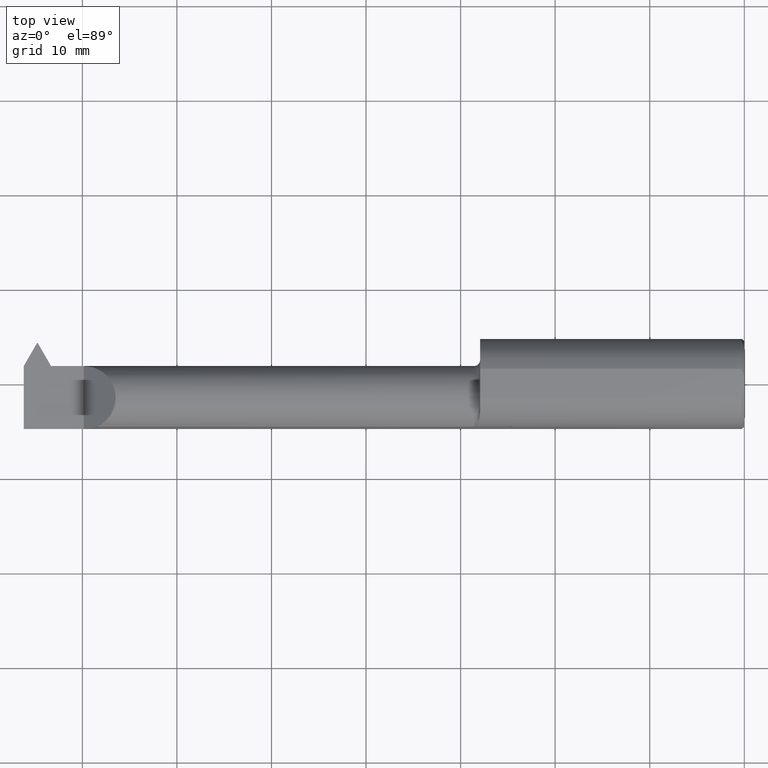
[diagram: clean part render]
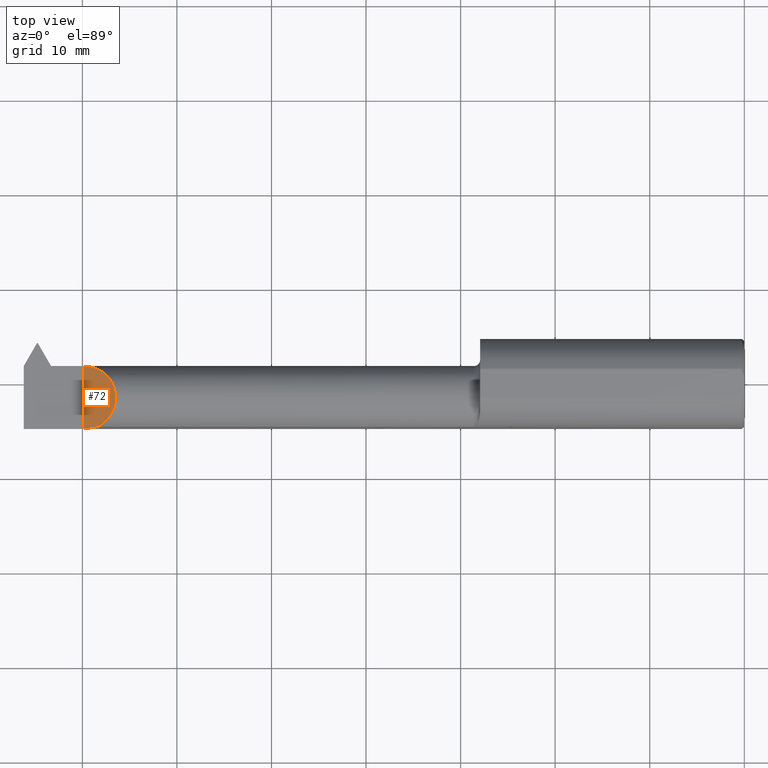
[diagram: same view with one face highlighted and labeled with its STEP entity id]
A machine part, top view. The second image highlights one B-rep face of the part: STEP entity #72.
In plain terms, the highlighted planar face has unit normal (0.7071, 0, -0.7071).
Its self-contained STEP definition (entity closure, byte-faithful):
#10 =( BOUNDED_CURVE ( )  B_SPLINE_CURVE ( 3, ( #798, #262, #200, #266 ),
 .UNSPECIFIED., .F., .T. ) 
 B_SPLINE_CURVE_WITH_KNOTS ( ( 4, 4 ),
 ( 1.570796326794896558, 4.266908708460885435 ),
 .UNSPECIFIED. ) 
 CURVE ( )  GEOMETRIC_REPRESENTATION_ITEM ( )  RATIONAL_B_SPLINE_CURVE ( ( 1.000000000000000000, 0.4806019281062861581, 0.4806019281062861581, 1.000000000000000000 ) ) 
 REPRESENTATION_ITEM ( '' )  );
#34 = VERTEX_POINT ( 'NONE', #297 ) ;
#56 = EDGE_LOOP ( 'NONE', ( #560, #133, #660 ) ) ;
#72 = ADVANCED_FACE ( 'NONE', ( #236 ), #569, .F. ) ;
#115 = EDGE_CURVE ( 'NONE', #34, #625, #366, .T. ) ;
#133 = ORIENTED_EDGE ( 'NONE', *, *, #115, .F. ) ;
#200 = CARTESIAN_POINT ( 'NONE',  ( -2.530319072763994370, -0.1008380660117492583, 0.2196809272360040199 ) ) ;
#236 = FACE_OUTER_BOUND ( 'NONE', #56, .T. ) ;
#247 = DIRECTION ( 'NONE',  ( -0.000000000000000000, 1.000000000000000000, -0.000000000000000000 ) ) ;
#262 = CARTESIAN_POINT ( 'NONE',  ( -2.570066830337789376, 0.07464999999999992475, 0.1799331696622088750 ) ) ;
#266 = CARTESIAN_POINT ( 'NONE',  ( -2.692691453216398578, -0.1783697086546696398, 0.05730854678360174786 ) ) ;
#297 = CARTESIAN_POINT ( 'NONE',  ( -2.750000000000000888, -0.1873500000000000165, 0.000000000000000000 ) ) ;
#342 = CARTESIAN_POINT ( 'NONE',  ( -2.730507368514860200, -0.1873500000000000165, 0.01949263148514045890 ) ) ;
#359 = AXIS2_PLACEMENT_3D ( 'NONE', #362, #378, #584 ) ;
#362 = CARTESIAN_POINT ( 'NONE',  ( -2.750000000000000888, -0.2500000000000000000, 0.000000000000000000 ) ) ;
#366 = LINE ( 'NONE', #644, #467 ) ;
#378 = DIRECTION ( 'NONE',  ( 0.7071067811865426878, 0.000000000000000000, -0.7071067811865523467 ) ) ;
#409 =( BOUNDED_CURVE ( )  B_SPLINE_CURVE ( 3, ( #708, #342, #757, #544 ),
 .UNSPECIFIED., .F., .T. ) 
 B_SPLINE_CURVE_WITH_KNOTS ( ( 4, 4 ),
 ( 4.712388980384689674, 5.023262387692862596 ),
 .UNSPECIFIED. ) 
 CURVE ( )  GEOMETRIC_REPRESENTATION_ITEM ( )  RATIONAL_B_SPLINE_CURVE ( ( 1.000000000000000000, 0.9919626788073504509, 0.9919626788073504509, 1.000000000000000000 ) ) 
 REPRESENTATION_ITEM ( '' )  );
#424 = CARTESIAN_POINT ( 'NONE',  ( -2.750000000000000888, 0.07464999999999991087, 0.000000000000000000 ) ) ;
#467 = VECTOR ( 'NONE', #247, 39.37007874015748143 ) ;
#476 = VERTEX_POINT ( 'NONE', #578 ) ;
#539 = EDGE_CURVE ( 'NONE', #34, #476, #409, .T. ) ;
#544 = CARTESIAN_POINT ( 'NONE',  ( -2.692691453216398578, -0.1783697086546696398, 0.05730854678360174786 ) ) ;
#560 = ORIENTED_EDGE ( 'NONE', *, *, #821, .F. ) ;
#569 = PLANE ( 'NONE',  #359 ) ;
#578 = CARTESIAN_POINT ( 'NONE',  ( -2.692691453216398578, -0.1783697086546696398, 0.05730854678360174786 ) ) ;
#584 = DIRECTION ( 'NONE',  ( -0.7071067811865523467, 0.000000000000000000, -0.7071067811865426878 ) ) ;
#625 = VERTEX_POINT ( 'NONE', #424 ) ;
#644 = CARTESIAN_POINT ( 'NONE',  ( -2.750000000000000888, -0.2500000000000000000, 0.000000000000000000 ) ) ;
#660 = ORIENTED_EDGE ( 'NONE', *, *, #539, .T. ) ;
#708 = CARTESIAN_POINT ( 'NONE',  ( -2.750000000000000888, -0.1873500000000000165, 0.000000000000000000 ) ) ;
#757 = CARTESIAN_POINT ( 'NONE',  ( -2.711249739839923567, -0.1843323154515828510, 0.03875026016007689783 ) ) ;
#798 = CARTESIAN_POINT ( 'NONE',  ( -2.750000000000000888, 0.07464999999999991087, 0.000000000000000000 ) ) ;
#821 = EDGE_CURVE ( 'NONE', #625, #476, #10, .T. ) ;